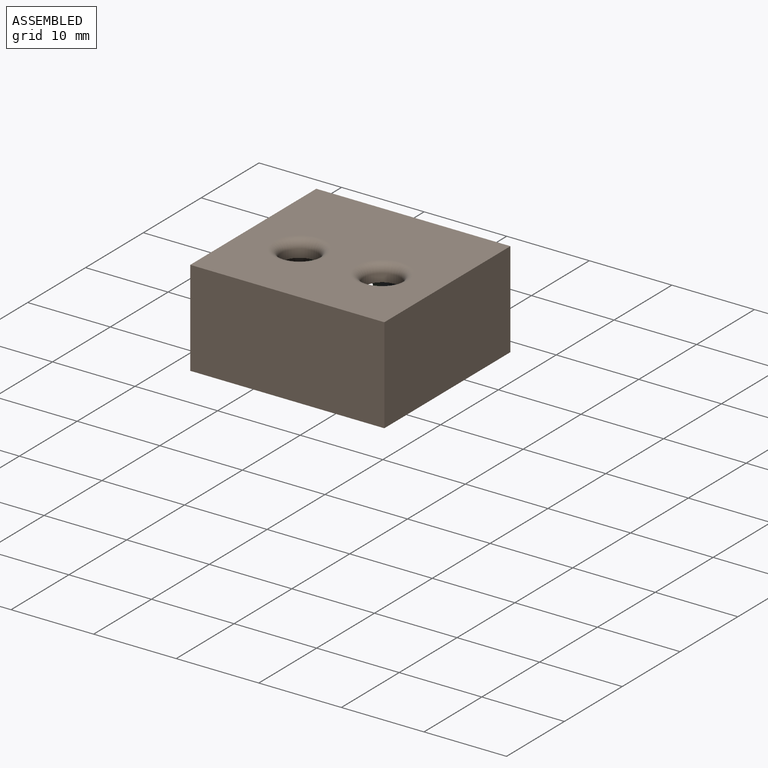
[diagram: assembled view]
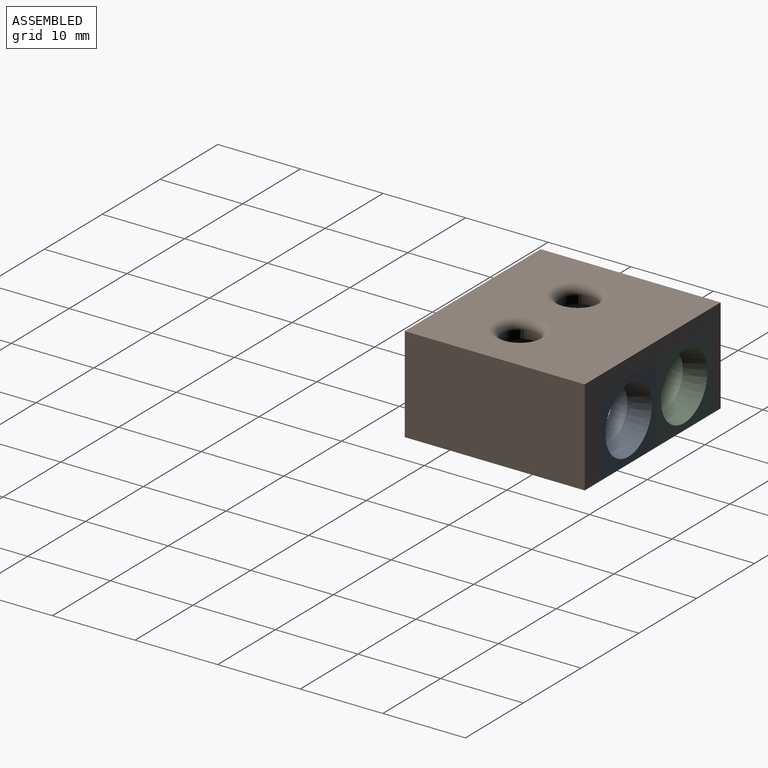
[diagram: assembled view, second angle]
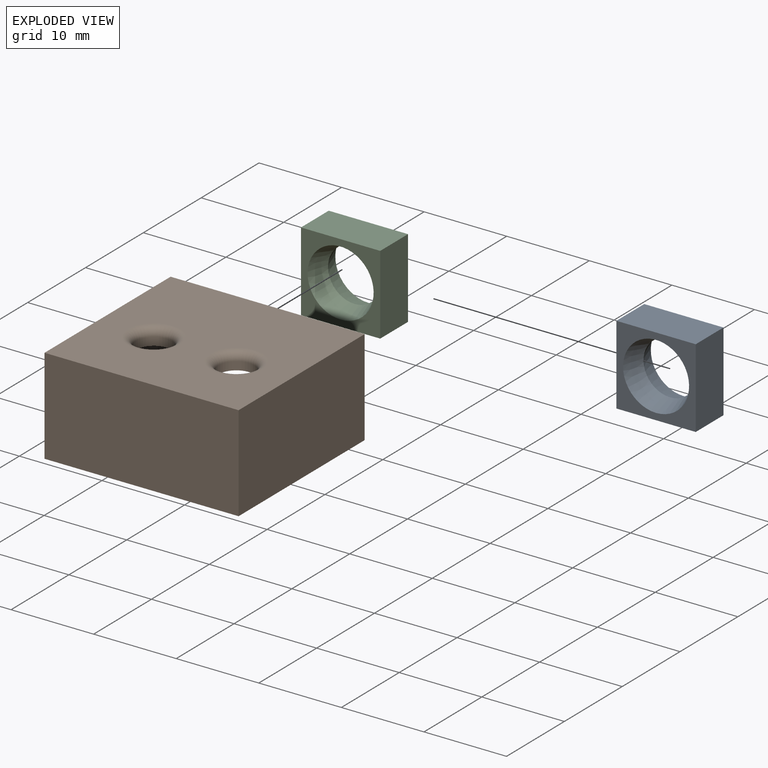
[diagram: exploded view]
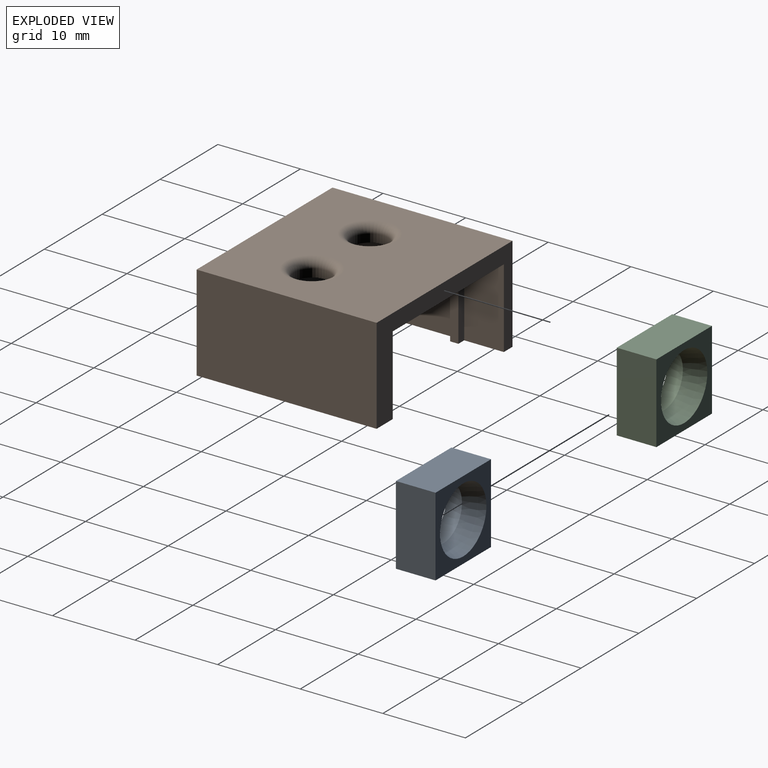
[diagram: exploded view, second angle]
ASSEMBLY  parts=3 mates=2
PART A: 8 faces, bbox 9.6x9.6x4.8 mm
  f0: plane 9.6x9.6mm, normal (0,0,1), area 41.9mm2, adj f2,f4,f5,f6,f7
  f1: plane 9.6x9.6mm, normal (0,0,-1), area 41.9mm2, adj f3,f4,f5,f6,f7
  f2: cone r=3.2mm half-angle=18.4deg, axis (0,0,1), area 57.2mm2, adj f0,f3
  f3: cone r=4mm half-angle=18.4deg, axis (0,0,-1), area 57.2mm2, adj f1,f2
  f4: plane 9.6x4.8mm, normal (0,1,0), area 46.1mm2, adj f0,f1,f5,f6
  f5: plane 9.6x4.8mm, normal (1,0,0), area 46.1mm2, adj f0,f1,f4,f7
  f6: plane 9.6x4.8mm, normal (-1,0,0), area 46.1mm2, adj f0,f1,f4,f7
  f7: plane 9.6x4.8mm, normal (0,-1,0), area 46.1mm2, adj f0,f1,f5,f6
PART B: 26 faces, bbox 23.5x21.8x11.6 mm
  f0: plane 21.8x11.6mm, normal (1,0,0), area 252.9mm2, adj f1,f4,f6,f25
  f1: plane 23.5x11.6mm, normal (0,1,0), area 88.3mm2, adj f0,f2,f6,f7,f10,f24,f25
  f2: plane 21.8x11.6mm, normal (-1,0,0), area 252.9mm2, adj f1,f4,f6,f25
  f3: cylinder r=2.2mm len=4.4mm, axis (0,0,-1), area 13.8mm2, adj f7,f9
  f4: plane 23.5x11.6mm, normal (0,-1,0), area 272.6mm2, adj f0,f2,f6,f25
  f5: cylinder r=2.2mm len=4.4mm, axis (0,0,-1), area 13.8mm2, adj f7,f8
  f6: plane 23.5x21.8mm, normal (0,0,1), area 448mm2, adj f0,f1,f2,f4,f8,f9
  f7: plane 20.5x20.3mm, normal (0,0,-1), area 375.5mm2, adj f1,f3,f5,f10,f11,f12,f13,f14
  f8: torus R=3.2mm, axis (0,0,1), area 25.3mm2, adj f5,f6
  f9: torus R=3.2mm, axis (0,0,1), area 25.3mm2, adj f3,f6
  f10: plane 9.6x4.8mm, normal (-1,0,0), area 46.1mm2, adj f1,f7,f11,f25
  f11: plane 9.6x0.3mm, normal (0,-1,0), area 2.9mm2, adj f7,f10,f12,f25
  f12: plane 9.6x1mm, normal (-1,0,0), area 9.6mm2, adj f7,f11,f13,f25
  f13: plane 9.6x1mm, normal (0,-1,0), area 9.6mm2, adj f7,f12,f14,f25
  f14: plane 13.5x9.6mm, normal (-1,0,0), area 129.6mm2, adj f7,f13,f15,f25
  f15: plane 9.6x1mm, normal (0,1,0), area 9.6mm2, adj f7,f14,f16,f25
  f16: plane 9.6x1mm, normal (-1,0,0), area 9.6mm2, adj f7,f15,f17,f25
  f17: plane 18.5x9.6mm, normal (0,1,0), area 177.6mm2, adj f7,f16,f18,f25
  f18: plane 9.6x1mm, normal (1,0,0), area 9.6mm2, adj f7,f17,f19,f25
  f19: plane 9.6x1mm, normal (0,1,0), area 9.6mm2, adj f7,f18,f20,f25
  f20: plane 13.5x9.6mm, normal (1,0,0), area 129.6mm2, adj f7,f19,f21,f25
  f21: plane 9.6x1mm, normal (0,-1,0), area 9.6mm2, adj f7,f20,f22,f25
  f22: plane 9.6x1mm, normal (1,0,0), area 9.6mm2, adj f7,f21,f23,f25
  f23: plane 9.6x1mm, normal (0,1,0), area 9.6mm2, adj f7,f22,f24,f25
  f24: plane 9.6x4.8mm, normal (1,0,0), area 46.1mm2, adj f1,f7,f23,f25
  f25: plane 23.5x21.8mm, normal (0,0,-1), area 106.4mm2, adj f0,f1,f2,f4,f10,f11,f12,f13
PART C: same geometry as A
PLACE A rot(axis=(-0.58,0.58,0.58),120deg) t=(14.94,2.22,-2.31)mm
PLACE B t=(-5.21,-5.53,2.49)mm
PLACE C rot(axis=(-0.58,0.58,0.58),120deg) t=(5.34,2.22,-2.31)mm
MATE fastened A.f4 <-> C.f7  axis (-1,0,0) through (-5.86,4.62,-2.31)mm
MATE fastened C.f4 <-> B.f24  axis (-1,0,0) through (-15.46,4.62,-2.31)mm
